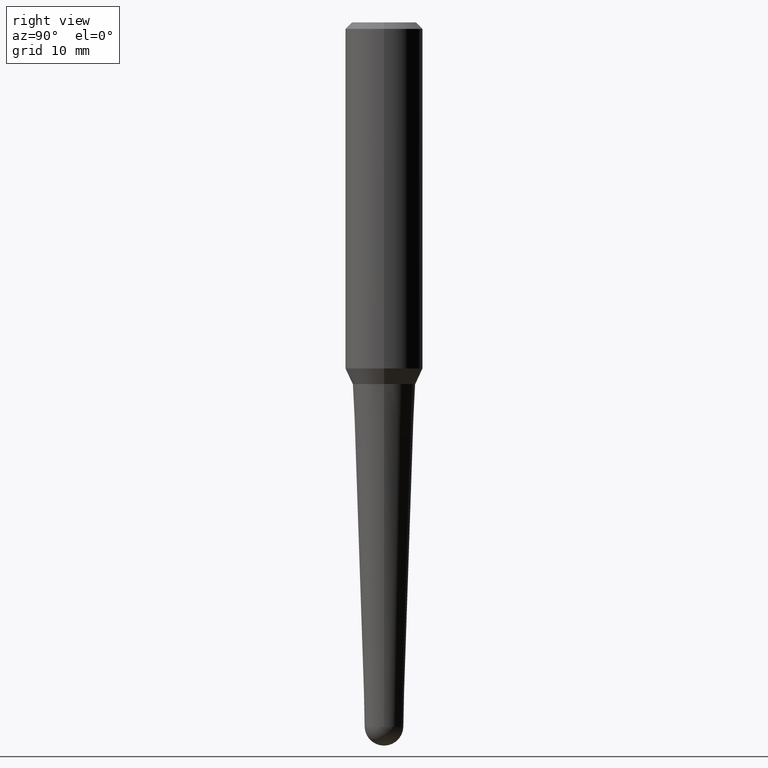
[diagram: clean part render]
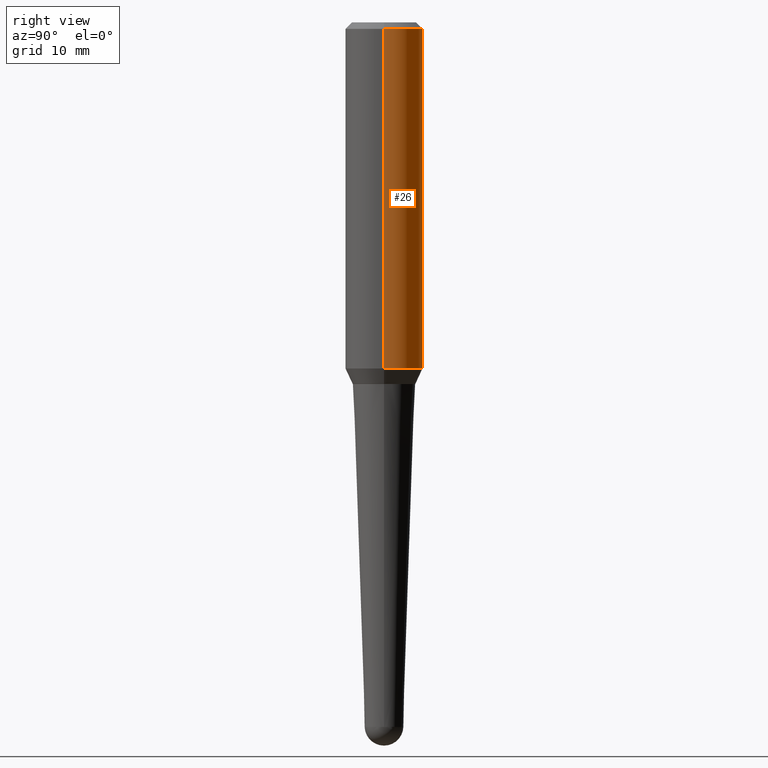
[diagram: same view with one face highlighted and labeled with its STEP entity id]
A machine part, right view. The second image highlights one B-rep face of the part: STEP entity #26.
In plain terms, the highlighted cylindrical surface (partial cylindrical patch) has radius 4.7625 mm, axis along (-0, 0, 1).
Its self-contained STEP definition (entity closure, byte-faithful):
#9 = ORIENTED_EDGE ( 'NONE', *, *, #62, .T. ) ;
#10 = CARTESIAN_POINT ( 'NONE',  ( 7.642090019328561499E-31, -1.091087918388484350E-16, -0.03125000000000003469 ) ) ;
#18 = CARTESIAN_POINT ( 'NONE',  ( -0.1875000000000001110, 1.332267629550190807E-15, 5.931196827434205055E-16 ) ) ;
#22 = LINE ( 'NONE', #133, #79 ) ;
#26 = ADVANCED_FACE ( 'NONE', ( #150 ), #110, .T. ) ;
#37 = DIRECTION ( 'NONE',  ( -2.445468806185136597E-29, 3.491481338843145583E-15, 1.000000000000000000 ) ) ;
#54 = VECTOR ( 'NONE', #329, 39.37007874015748143 ) ;
#62 = EDGE_CURVE ( 'NONE', #171, #75, #285, .T. ) ;
#73 = ORIENTED_EDGE ( 'NONE', *, *, #182, .F. ) ;
#75 = VERTEX_POINT ( 'NONE', #444 ) ;
#79 = VECTOR ( 'NONE', #272, 39.37007874015748143 ) ;
#107 = EDGE_LOOP ( 'NONE', ( #202, #9, #375, #73 ) ) ;
#110 = CYLINDRICAL_SURFACE ( 'NONE', #460, 0.1875000000000001110 ) ;
#122 = DIRECTION ( 'NONE',  ( 1.000000000000000000, -6.982962677686266711E-15, 0.000000000000000000 ) ) ;
#133 = CARTESIAN_POINT ( 'NONE',  ( 0.1875000000000001110, -1.309305502066173628E-15, 5.931196827434387479E-16 ) ) ;
#142 = CARTESIAN_POINT ( 'NONE',  ( -1.450455682483482035E-44, 2.070866303999251778E-30, 5.931196827434296760E-16 ) ) ;
#150 = FACE_OUTER_BOUND ( 'NONE', #107, .T. ) ;
#171 = VERTEX_POINT ( 'NONE', #336 ) ;
#182 = EDGE_CURVE ( 'NONE', #437, #352, #22, .T. ) ;
#202 = ORIENTED_EDGE ( 'NONE', *, *, #324, .T. ) ;
#235 = CIRCLE ( 'NONE', #381, 0.1874999999999999722 ) ;
#250 = AXIS2_PLACEMENT_3D ( 'NONE', #462, #37, #389 ) ;
#272 = DIRECTION ( 'NONE',  ( -2.445468806185136877E-29, 3.491481338843145188E-15, 1.000000000000000000 ) ) ;
#283 = CARTESIAN_POINT ( 'NONE',  ( 0.1874999999999999722, -1.418414293905023123E-15, -0.03125000000000003469 ) ) ;
#285 = LINE ( 'NONE', #18, #54 ) ;
#288 = CARTESIAN_POINT ( 'NONE',  ( 0.1875000000000002220, -7.157034139955123582E-15, -1.674856048300264355 ) ) ;
#289 = DIRECTION ( 'NONE',  ( 1.000000000000000000, -6.982962677686266711E-15, 4.852736867747363404E-29 ) ) ;
#324 = EDGE_CURVE ( 'NONE', #437, #171, #390, .T. ) ;
#329 = DIRECTION ( 'NONE',  ( -2.445468806185136877E-29, 3.491481338843145188E-15, 1.000000000000000000 ) ) ;
#336 = CARTESIAN_POINT ( 'NONE',  ( -0.1875000000000002220, -4.515461008338757570E-15, -1.674856048300264355 ) ) ;
#352 = VERTEX_POINT ( 'NONE', #283 ) ;
#358 = DIRECTION ( 'NONE',  ( -2.445468806185136597E-29, 3.491481338843145583E-15, 1.000000000000000000 ) ) ;
#361 = DIRECTION ( 'NONE',  ( -2.445468806185136597E-29, 3.491481338843145583E-15, 1.000000000000000000 ) ) ;
#375 = ORIENTED_EDGE ( 'NONE', *, *, #424, .F. ) ;
#381 = AXIS2_PLACEMENT_3D ( 'NONE', #10, #358, #122 ) ;
#389 = DIRECTION ( 'NONE',  ( 1.000000000000000000, -6.982962677686265133E-15, 0.000000000000000000 ) ) ;
#390 = CIRCLE ( 'NONE', #250, 0.1875000000000002220 ) ;
#424 = EDGE_CURVE ( 'NONE', #352, #75, #235, .T. ) ;
#437 = VERTEX_POINT ( 'NONE', #288 ) ;
#444 = CARTESIAN_POINT ( 'NONE',  ( -0.1874999999999999722, -1.646151085313708425E-15, -0.03125000000000003469 ) ) ;
#460 = AXIS2_PLACEMENT_3D ( 'NONE', #142, #361, #289 ) ;
#462 = CARTESIAN_POINT ( 'NONE',  ( 4.095808220968802460E-29, -5.847728637888946996E-15, -1.674856048300264355 ) ) ;